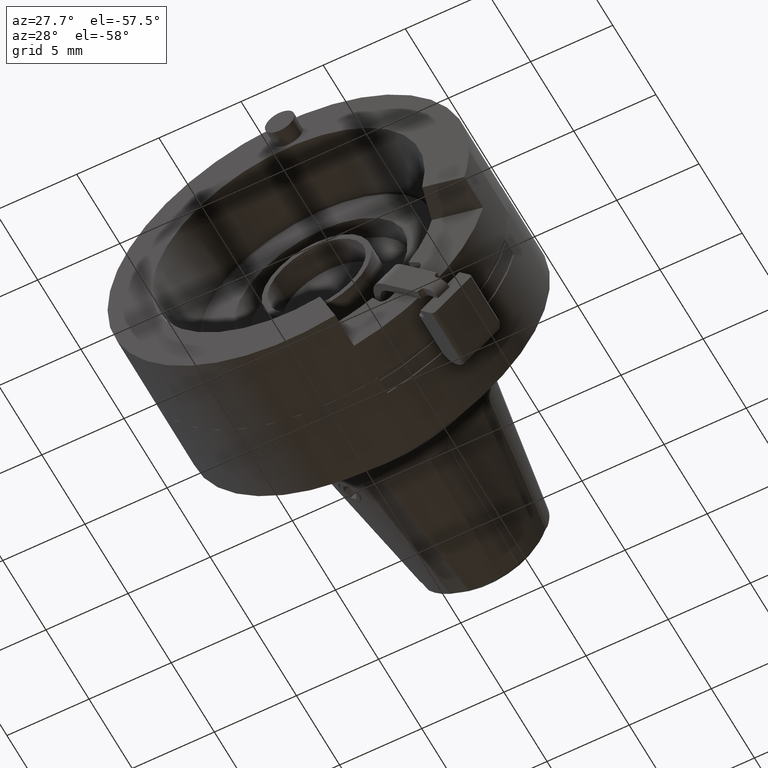
[diagram: clean part render]
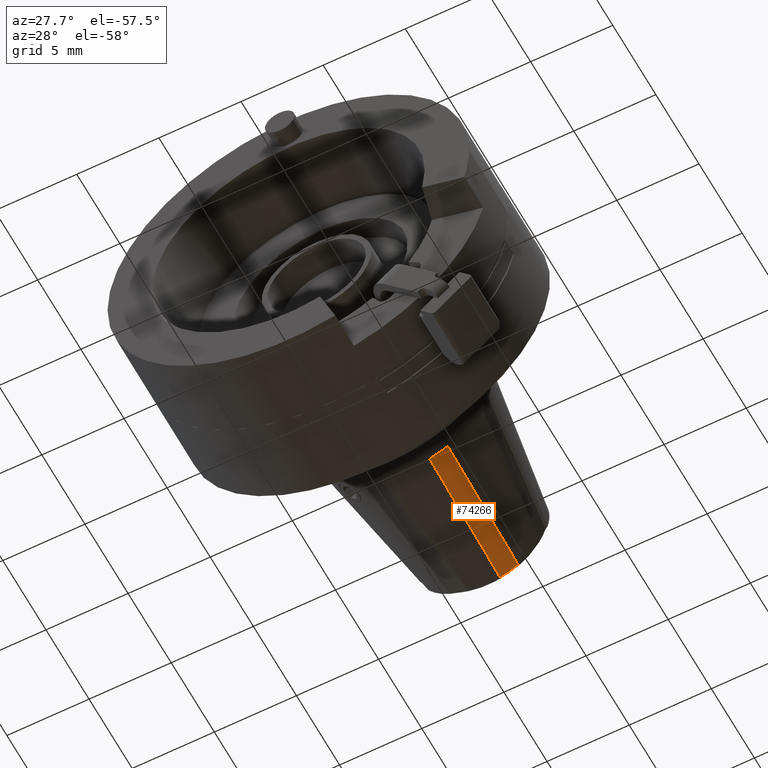
[diagram: same view with one face highlighted and labeled with its STEP entity id]
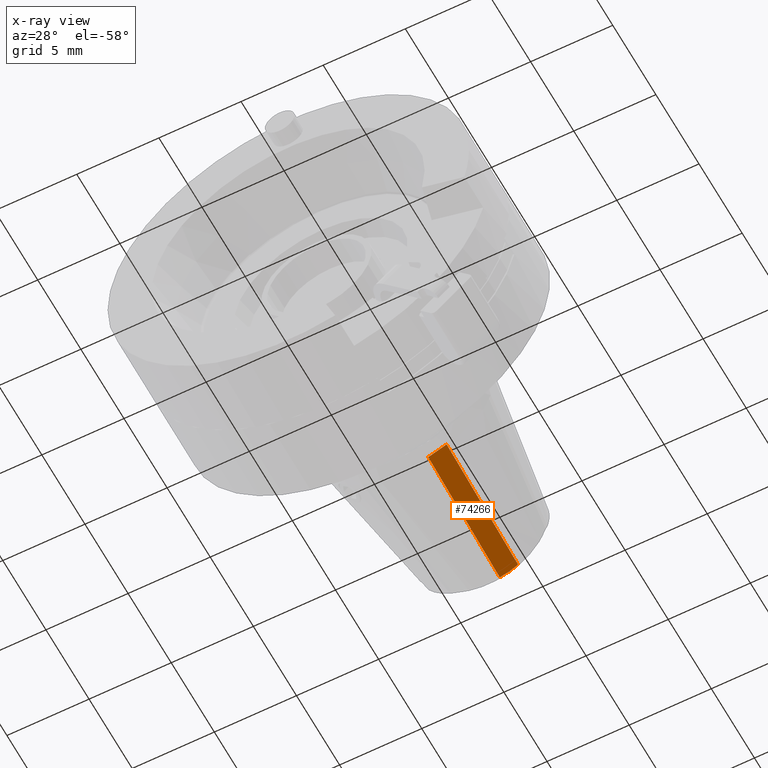
[diagram: x-ray of the same camera — body ghosted, the highlighted face saturated]
A machine part, auxiliary view. The second image highlights one B-rep face of the part: STEP entity #74266.
The next image is the same camera in x-ray: the body ghosted, the highlighted face saturated — about 0% of this face is hidden behind the body in this view.
In plain terms, the highlighted planar face has unit normal (-0.378, -0.1564, 0.9125).
Its self-contained STEP definition (entity closure, byte-faithful):
#56685=CARTESIAN_POINT('',(1.975228039736E0,1.960974003773E1,
-3.185519860163E0));
#56691=DIRECTION('',(5.986487802179E-2,-9.876883405951E-1,-1.445266004300E-1));
#56692=VECTOR('',#56691,9.478436988324E0);
#56693=CARTESIAN_POINT('',(1.975228039736E0,1.960974003773E1,
-3.185519860163E0));
#56694=LINE('',#56693,#56692);
#56706=CARTESIAN_POINT('',(1.975228039736E0,1.960974003773E1,
-3.185519860163E0));
#56707=CARTESIAN_POINT('',(1.880725267323E0,1.962317411107E1,
-3.222361132137E0));
#56708=CARTESIAN_POINT('',(1.692477630154E0,1.964344608943E1,
-3.296860548519E0));
#56709=CARTESIAN_POINT('',(1.412852607499E0,1.965358225405E1,
-3.410947341196E0));
#56710=CARTESIAN_POINT('',(1.134461496354E0,1.964344528684E1,
-3.527998536752E0));
#56711=CARTESIAN_POINT('',(9.486764248760E-1,1.962317362027E1,
-3.608428487611E0));
#56712=CARTESIAN_POINT('',(8.558055534385E-1,1.960974003773E1,
-3.649199836012E0));
#56718=CARTESIAN_POINT('',(8.558055534385E-1,1.960974003773E1,
-3.649199836012E0));
#56731=DIRECTION('',(5.986487802179E-2,-9.876883405951E-1,-1.445266004300E-1));
#56732=VECTOR('',#56731,9.478436988324E0);
#56733=CARTESIAN_POINT('',(8.558055534385E-1,1.960974003773E1,
-3.649199836012E0));
#56734=LINE('',#56733,#56732);
#56735=DIRECTION('',(-9.238795325113E-1,0.E0,-3.826834323651E-1));
#56736=VECTOR('',#56735,1.211654168E0);
#56737=CARTESIAN_POINT('',(2.542653513879E0,1.024799833730E1,
-4.555406135475E0));
#56738=LINE('',#56737,#56736);
#57099=CARTESIAN_POINT('',(2.542653513879E0,1.024799833730E1,
-4.555406135475E0));
#57100=CARTESIAN_POINT('',(1.423231027582E0,1.024799833730E1,
-5.019086111325E0));
#57101=VERTEX_POINT('',#57099);
#57102=VERTEX_POINT('',#57100);
#57163=VERTEX_POINT('',#56685);
#57164=VERTEX_POINT('',#56718);
#74253=CARTESIAN_POINT('',(1.955834914065E0,1.99297E1,-3.138700713150E0));
#74254=DIRECTION('',(-3.779719642859E-1,-1.564344650402E-1,9.125050423759E-1));
#74255=DIRECTION('',(5.986487802179E-2,-9.876883405951E-1,-1.445266004300E-1));
#74256=AXIS2_PLACEMENT_3D('',#74253,#74254,#74255);
#74257=PLANE('',#74256);
#74258=ORIENTED_EDGE('',*,*,#73810,.T.);
#74260=ORIENTED_EDGE('',*,*,#74259,.T.);
#74262=ORIENTED_EDGE('',*,*,#74261,.F.);
#74263=ORIENTED_EDGE('',*,*,#74245,.F.);
#74264=EDGE_LOOP('',(#74258,#74260,#74262,#74263));
#74265=FACE_OUTER_BOUND('',#74264,.F.);
#74266=ADVANCED_FACE('',(#74265),#74257,.F.);
#56713=B_SPLINE_CURVE_WITH_KNOTS('',3,(#56706,#56707,#56708,#56709,#56710,
#56711,#56712),.UNSPECIFIED.,.F.,.F.,(4,1,1,1,4),(0.E0,2.5E-1,5.E-1,7.5E-1,
1.E0),.UNSPECIFIED.);
#73810=EDGE_CURVE('',#57163,#57164,#56713,.T.);
#74245=EDGE_CURVE('',#57163,#57101,#56694,.T.);
#74259=EDGE_CURVE('',#57164,#57102,#56734,.T.);
#74261=EDGE_CURVE('',#57101,#57102,#56738,.T.);